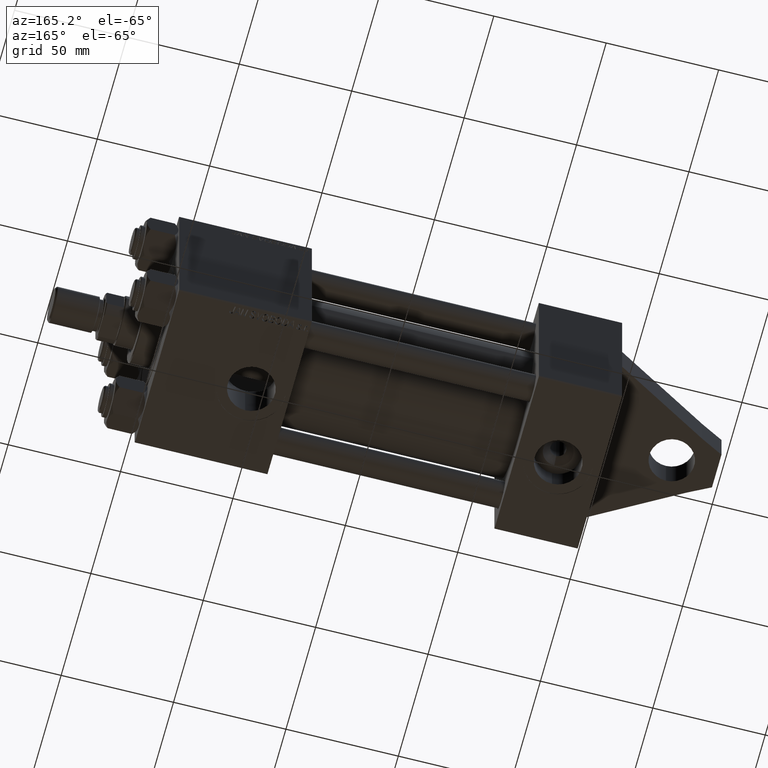
[diagram: clean part render]
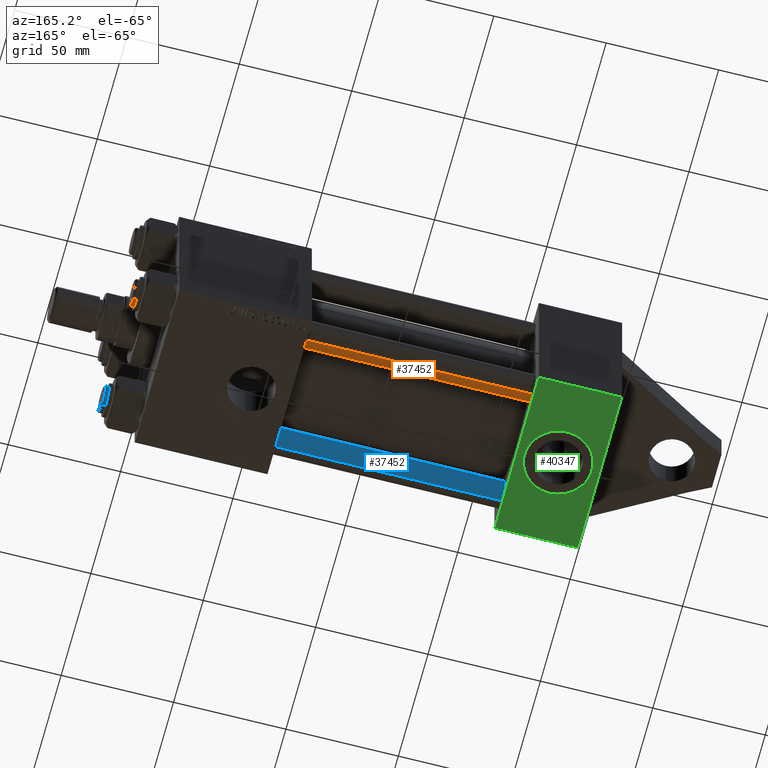
[diagram: same view with three faces highlighted in distinct colors, each labeled with its STEP entity id]
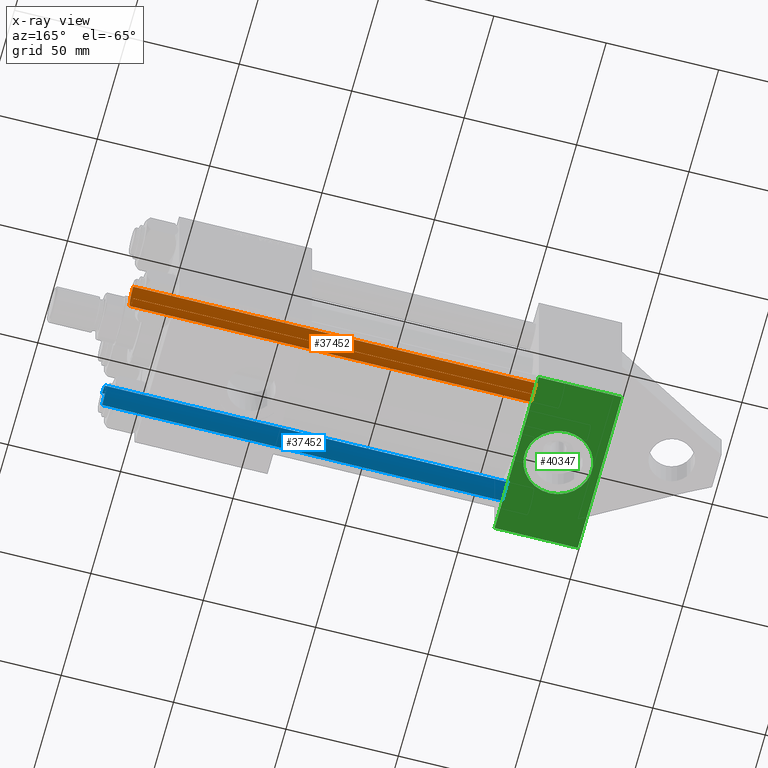
[diagram: x-ray of the same camera — body ghosted, the three highlighted faces saturated]
A machine part, auxiliary view with three faces highlighted in distinct colors.
The next image is the same camera in x-ray (body ghosted, the three faces saturated) — at least one of them is partly hidden behind the body in this view.
Their STEP definitions:

[orange] entity #37452 — the highlighted cylindrical surface (edge-blend (fillet) strip) has radius 6 mm, axis along (1, -0, -0).
#2315 = DIRECTION ( 'NONE',  ( -0.000000000000000000, -0.000000000000000000, -1.000000000000000000 ) ) ;
#2493 = DIRECTION ( 'NONE',  ( -0.000000000000000000, -0.000000000000000000, -1.000000000000000000 ) ) ;
#4582 = EDGE_CURVE ( 'NONE', #8193, #5816, #8477, .T. ) ;
#5329 = CARTESIAN_POINT ( 'NONE',  ( -6.000000000000000888, 0.000000000000000000, 0.4999999999999449329 ) ) ;
#5816 = VERTEX_POINT ( 'NONE', #32520 ) ;
#7024 = VERTEX_POINT ( 'NONE', #33362 ) ;
#8193 = VERTEX_POINT ( 'NONE', #5329 ) ;
#8477 = CIRCLE ( 'NONE', #16745, 6.000000000000000888 ) ;
#8675 = AXIS2_PLACEMENT_3D ( 'NONE', #15831, #31101, #20057 ) ;
#8749 = ORIENTED_EDGE ( 'NONE', *, *, #37963, .T. ) ;
#9307 = DIRECTION ( 'NONE',  ( -0.000000000000000000, -0.000000000000000000, 1.000000000000000000 ) ) ;
#9642 = VECTOR ( 'NONE', #31286, 1000.000000000000000 ) ;
#13518 = CARTESIAN_POINT ( 'NONE',  ( 6.000000000000000888, 7.347880794884120722E-16, 191.0000000000000000 ) ) ;
#13857 = EDGE_CURVE ( 'NONE', #7024, #35923, #44705, .T. ) ;
#15831 = CARTESIAN_POINT ( 'NONE',  ( 0.000000000000000000, 0.000000000000000000, 190.5000000000000284 ) ) ;
#16745 = AXIS2_PLACEMENT_3D ( 'NONE', #41511, #9307, #23656 ) ;
#17353 = CYLINDRICAL_SURFACE ( 'NONE', #23138, 6.000000000000000888 ) ;
#19007 = ORIENTED_EDGE ( 'NONE', *, *, #13857, .T. ) ;
#19345 = VECTOR ( 'NONE', #2493, 1000.000000000000000 ) ;
#20057 = DIRECTION ( 'NONE',  ( 1.000000000000000000, 0.000000000000000000, 0.000000000000000000 ) ) ;
#20089 = EDGE_CURVE ( 'NONE', #7024, #5816, #41978, .T. ) ;
#20717 = CARTESIAN_POINT ( 'NONE',  ( -6.000000000000000888, 0.000000000000000000, 190.5000000000000284 ) ) ;
#20878 = CARTESIAN_POINT ( 'NONE',  ( 0.000000000000000000, 0.000000000000000000, 191.0000000000000000 ) ) ;
#21183 = LINE ( 'NONE', #38573, #9642 ) ;
#23138 = AXIS2_PLACEMENT_3D ( 'NONE', #20878, #2315, #38509 ) ;
#23656 = DIRECTION ( 'NONE',  ( 1.000000000000000000, 0.000000000000000000, 0.000000000000000000 ) ) ;
#24068 = ORIENTED_EDGE ( 'NONE', *, *, #4582, .T. ) ;
#31101 = DIRECTION ( 'NONE',  ( 0.000000000000000000, 0.000000000000000000, -1.000000000000000000 ) ) ;
#31286 = DIRECTION ( 'NONE',  ( -0.000000000000000000, -0.000000000000000000, -1.000000000000000000 ) ) ;
#32520 = CARTESIAN_POINT ( 'NONE',  ( 6.000000000000000888, 7.347880794884120722E-16, 0.4999999999999449329 ) ) ;
#33362 = CARTESIAN_POINT ( 'NONE',  ( 6.000000000000000888, 7.347880794884120722E-16, 190.5000000000000284 ) ) ;
#35923 = VERTEX_POINT ( 'NONE', #20717 ) ;
#37452 = ADVANCED_FACE ( 'NONE', ( #42261 ), #17353, .T. ) ;
#37963 = EDGE_CURVE ( 'NONE', #35923, #8193, #21183, .T. ) ;
#38509 = DIRECTION ( 'NONE',  ( -1.000000000000000000, 0.000000000000000000, 0.000000000000000000 ) ) ;
#38573 = CARTESIAN_POINT ( 'NONE',  ( -6.000000000000000888, 0.000000000000000000, 191.0000000000000000 ) ) ;
#41463 = ORIENTED_EDGE ( 'NONE', *, *, #20089, .F. ) ;
#41511 = CARTESIAN_POINT ( 'NONE',  ( 0.000000000000000000, 0.000000000000000000, 0.4999999999999449329 ) ) ;
#41978 = LINE ( 'NONE', #13518, #19345 ) ;
#42261 = FACE_OUTER_BOUND ( 'NONE', #43289, .T. ) ;
#43289 = EDGE_LOOP ( 'NONE', ( #41463, #19007, #8749, #24068 ) ) ;
#44705 = CIRCLE ( 'NONE', #8675, 6.000000000000000888 ) ;

[blue] entity #37452 — the highlighted cylindrical surface (edge-blend (fillet) strip) has radius 6 mm, axis along (-1, -0, 0).
#2315 = DIRECTION ( 'NONE',  ( -0.000000000000000000, -0.000000000000000000, -1.000000000000000000 ) ) ;
#2493 = DIRECTION ( 'NONE',  ( -0.000000000000000000, -0.000000000000000000, -1.000000000000000000 ) ) ;
#4582 = EDGE_CURVE ( 'NONE', #8193, #5816, #8477, .T. ) ;
#5329 = CARTESIAN_POINT ( 'NONE',  ( -6.000000000000000888, 0.000000000000000000, 0.4999999999999449329 ) ) ;
#5816 = VERTEX_POINT ( 'NONE', #32520 ) ;
#7024 = VERTEX_POINT ( 'NONE', #33362 ) ;
#8193 = VERTEX_POINT ( 'NONE', #5329 ) ;
#8477 = CIRCLE ( 'NONE', #16745, 6.000000000000000888 ) ;
#8675 = AXIS2_PLACEMENT_3D ( 'NONE', #15831, #31101, #20057 ) ;
#8749 = ORIENTED_EDGE ( 'NONE', *, *, #37963, .T. ) ;
#9307 = DIRECTION ( 'NONE',  ( -0.000000000000000000, -0.000000000000000000, 1.000000000000000000 ) ) ;
#9642 = VECTOR ( 'NONE', #31286, 1000.000000000000000 ) ;
#13518 = CARTESIAN_POINT ( 'NONE',  ( 6.000000000000000888, 7.347880794884120722E-16, 191.0000000000000000 ) ) ;
#13857 = EDGE_CURVE ( 'NONE', #7024, #35923, #44705, .T. ) ;
#15831 = CARTESIAN_POINT ( 'NONE',  ( 0.000000000000000000, 0.000000000000000000, 190.5000000000000284 ) ) ;
#16745 = AXIS2_PLACEMENT_3D ( 'NONE', #41511, #9307, #23656 ) ;
#17353 = CYLINDRICAL_SURFACE ( 'NONE', #23138, 6.000000000000000888 ) ;
#19007 = ORIENTED_EDGE ( 'NONE', *, *, #13857, .T. ) ;
#19345 = VECTOR ( 'NONE', #2493, 1000.000000000000000 ) ;
#20057 = DIRECTION ( 'NONE',  ( 1.000000000000000000, 0.000000000000000000, 0.000000000000000000 ) ) ;
#20089 = EDGE_CURVE ( 'NONE', #7024, #5816, #41978, .T. ) ;
#20717 = CARTESIAN_POINT ( 'NONE',  ( -6.000000000000000888, 0.000000000000000000, 190.5000000000000284 ) ) ;
#20878 = CARTESIAN_POINT ( 'NONE',  ( 0.000000000000000000, 0.000000000000000000, 191.0000000000000000 ) ) ;
#21183 = LINE ( 'NONE', #38573, #9642 ) ;
#23138 = AXIS2_PLACEMENT_3D ( 'NONE', #20878, #2315, #38509 ) ;
#23656 = DIRECTION ( 'NONE',  ( 1.000000000000000000, 0.000000000000000000, 0.000000000000000000 ) ) ;
#24068 = ORIENTED_EDGE ( 'NONE', *, *, #4582, .T. ) ;
#31101 = DIRECTION ( 'NONE',  ( 0.000000000000000000, 0.000000000000000000, -1.000000000000000000 ) ) ;
#31286 = DIRECTION ( 'NONE',  ( -0.000000000000000000, -0.000000000000000000, -1.000000000000000000 ) ) ;
#32520 = CARTESIAN_POINT ( 'NONE',  ( 6.000000000000000888, 7.347880794884120722E-16, 0.4999999999999449329 ) ) ;
#33362 = CARTESIAN_POINT ( 'NONE',  ( 6.000000000000000888, 7.347880794884120722E-16, 190.5000000000000284 ) ) ;
#35923 = VERTEX_POINT ( 'NONE', #20717 ) ;
#37452 = ADVANCED_FACE ( 'NONE', ( #42261 ), #17353, .T. ) ;
#37963 = EDGE_CURVE ( 'NONE', #35923, #8193, #21183, .T. ) ;
#38509 = DIRECTION ( 'NONE',  ( -1.000000000000000000, 0.000000000000000000, 0.000000000000000000 ) ) ;
#38573 = CARTESIAN_POINT ( 'NONE',  ( -6.000000000000000888, 0.000000000000000000, 191.0000000000000000 ) ) ;
#41463 = ORIENTED_EDGE ( 'NONE', *, *, #20089, .F. ) ;
#41511 = CARTESIAN_POINT ( 'NONE',  ( 0.000000000000000000, 0.000000000000000000, 0.4999999999999449329 ) ) ;
#41978 = LINE ( 'NONE', #13518, #19345 ) ;
#42261 = FACE_OUTER_BOUND ( 'NONE', #43289, .T. ) ;
#43289 = EDGE_LOOP ( 'NONE', ( #41463, #19007, #8749, #24068 ) ) ;
#44705 = CIRCLE ( 'NONE', #8675, 6.000000000000000888 ) ;

[green] entity #40347 — the highlighted planar face has unit normal (0, -0, 1).
#106 = PLANE ( 'NONE',  #22505 ) ;
#849 = CARTESIAN_POINT ( 'NONE',  ( 0.000000000000000000, -37.50000000000000711, 37.49999999999999289 ) ) ;
#4997 = CARTESIAN_POINT ( 'NONE',  ( 37.00000000000000000, -37.50000000000000000, -37.00000000000003553 ) ) ;
#5056 = ORIENTED_EDGE ( 'NONE', *, *, #29200, .F. ) ;
#8112 = DIRECTION ( 'NONE',  ( 0.000000000000000000, -1.000000000000000000, -8.673617379884036705E-17 ) ) ;
#9284 = DIRECTION ( 'NONE',  ( -1.000000000000000000, 0.000000000000000000, 0.000000000000000000 ) ) ;
#9999 = CARTESIAN_POINT ( 'NONE',  ( 37.00000000000000000, -37.50000000000000711, 37.49999999999999289 ) ) ;
#10508 = AXIS2_PLACEMENT_3D ( 'NONE', #36340, #8112, #14246 ) ;
#10511 = VERTEX_POINT ( 'NONE', #10709 ) ;
#10709 = CARTESIAN_POINT ( 'NONE',  ( 18.50000000000000355, -37.50000000000000711, 14.99999999999999822 ) ) ;
#13260 = CARTESIAN_POINT ( 'NONE',  ( 37.00000000000000000, -37.50000000000000711, 36.99999999999999289 ) ) ;
#13500 = EDGE_LOOP ( 'NONE', ( #5056, #43329 ) ) ;
#13569 = EDGE_CURVE ( 'NONE', #16779, #31817, #22487, .T. ) ;
#13864 = VERTEX_POINT ( 'NONE', #4997 ) ;
#14246 = DIRECTION ( 'NONE',  ( 0.000000000000000000, 0.000000000000000000, -1.000000000000000000 ) ) ;
#14447 = DIRECTION ( 'NONE',  ( 0.000000000000000000, -9.251858538542971581E-17, 1.000000000000000000 ) ) ;
#15561 = ORIENTED_EDGE ( 'NONE', *, *, #27623, .T. ) ;
#15599 = VERTEX_POINT ( 'NONE', #38464 ) ;
#16107 = LINE ( 'NONE', #13260, #42767 ) ;
#16779 = VERTEX_POINT ( 'NONE', #40731 ) ;
#18015 = CIRCLE ( 'NONE', #10508, 15.00000000000000178 ) ;
#18951 = DIRECTION ( 'NONE',  ( 0.000000000000000000, 9.251858538542971581E-17, -1.000000000000000000 ) ) ;
#20042 = EDGE_CURVE ( 'NONE', #45440, #13864, #42677, .T. ) ;
#21274 = FACE_OUTER_BOUND ( 'NONE', #21419, .T. ) ;
#21419 = EDGE_LOOP ( 'NONE', ( #38442, #39760, #30534, #15561 ) ) ;
#22487 = LINE ( 'NONE', #849, #28185 ) ;
#22505 = AXIS2_PLACEMENT_3D ( 'NONE', #39597, #32782, #14447 ) ;
#24623 = VECTOR ( 'NONE', #31405, 1000.000000000000000 ) ;
#25106 = CARTESIAN_POINT ( 'NONE',  ( 37.00000000000000000, -37.50000000000000000, -37.00000000000003553 ) ) ;
#25293 = VECTOR ( 'NONE', #35238, 1000.000000000000000 ) ;
#27235 = CARTESIAN_POINT ( 'NONE',  ( 0.000000000000000000, -37.50000000000000000, -37.00000000000003553 ) ) ;
#27623 = EDGE_CURVE ( 'NONE', #45440, #16779, #16107, .T. ) ;
#28185 = VECTOR ( 'NONE', #18951, 1000.000000000000000 ) ;
#29200 = EDGE_CURVE ( 'NONE', #15599, #10511, #18015, .T. ) ;
#30534 = ORIENTED_EDGE ( 'NONE', *, *, #20042, .F. ) ;
#31405 = DIRECTION ( 'NONE',  ( 0.000000000000000000, 9.251858538542971581E-17, -1.000000000000000000 ) ) ;
#31817 = VERTEX_POINT ( 'NONE', #27235 ) ;
#31859 = FACE_BOUND ( 'NONE', #13500, .T. ) ;
#32332 = DIRECTION ( 'NONE',  ( 0.000000000000000000, 0.000000000000000000, -1.000000000000000000 ) ) ;
#32782 = DIRECTION ( 'NONE',  ( -0.000000000000000000, 1.000000000000000000, 9.251858538542971581E-17 ) ) ;
#33019 = DIRECTION ( 'NONE',  ( 0.000000000000000000, -1.000000000000000000, -8.673617379884036705E-17 ) ) ;
#34083 = EDGE_CURVE ( 'NONE', #31817, #13864, #35471, .T. ) ;
#35238 = DIRECTION ( 'NONE',  ( 1.000000000000000000, 0.000000000000000000, 0.000000000000000000 ) ) ;
#35471 = LINE ( 'NONE', #25106, #25293 ) ;
#36094 = CARTESIAN_POINT ( 'NONE',  ( 18.50000000000000000, -37.50000000000000711, -3.469446951953614978E-15 ) ) ;
#36131 = CIRCLE ( 'NONE', #42872, 15.00000000000000178 ) ;
#36340 = CARTESIAN_POINT ( 'NONE',  ( 18.50000000000000000, -37.50000000000000711, -3.469446951953614978E-15 ) ) ;
#38442 = ORIENTED_EDGE ( 'NONE', *, *, #13569, .T. ) ;
#38464 = CARTESIAN_POINT ( 'NONE',  ( 18.50000000000000000, -37.50000000000000711, -15.00000000000000533 ) ) ;
#39597 = CARTESIAN_POINT ( 'NONE',  ( 37.00000000000000000, -37.50000000000000711, 37.49999999999999289 ) ) ;
#39760 = ORIENTED_EDGE ( 'NONE', *, *, #34083, .T. ) ;
#40347 = ADVANCED_FACE ( 'NONE', ( #31859, #21274 ), #106, .F. ) ;
#40731 = CARTESIAN_POINT ( 'NONE',  ( 0.000000000000000000, -37.50000000000000711, 36.99999999999999289 ) ) ;
#42677 = LINE ( 'NONE', #9999, #24623 ) ;
#42767 = VECTOR ( 'NONE', #9284, 1000.000000000000000 ) ;
#42860 = CARTESIAN_POINT ( 'NONE',  ( 37.00000000000000000, -37.50000000000000711, 36.99999999999999289 ) ) ;
#42872 = AXIS2_PLACEMENT_3D ( 'NONE', #36094, #33019, #32332 ) ;
#43329 = ORIENTED_EDGE ( 'NONE', *, *, #43688, .F. ) ;
#43688 = EDGE_CURVE ( 'NONE', #10511, #15599, #36131, .T. ) ;
#45440 = VERTEX_POINT ( 'NONE', #42860 ) ;